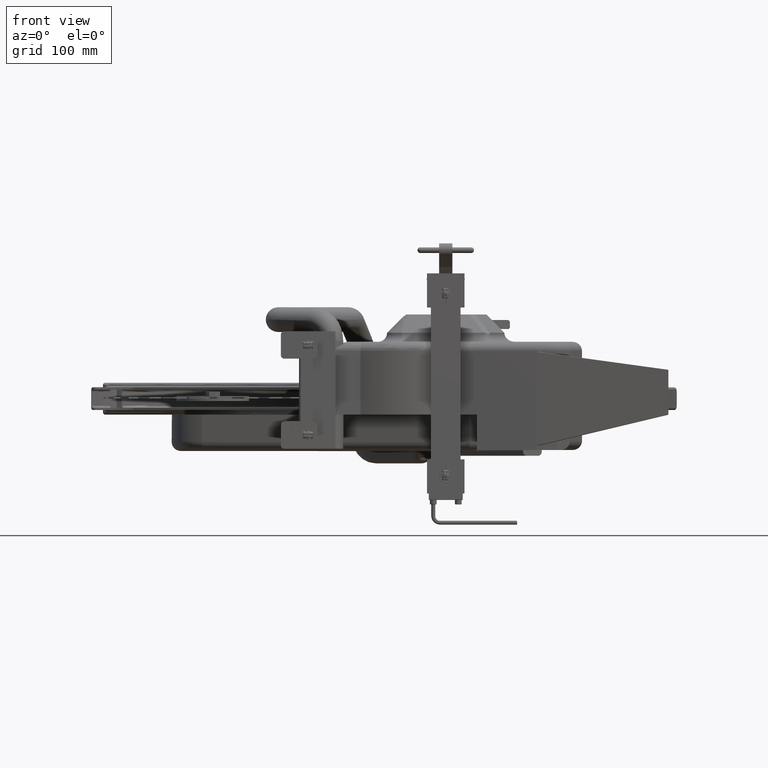
[diagram: clean part render]
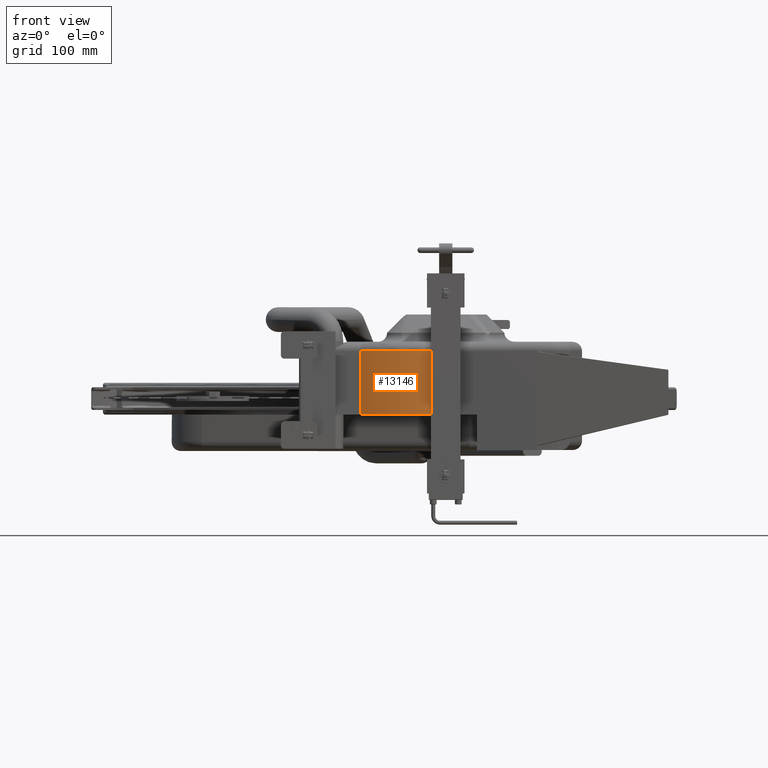
[diagram: same view with one face highlighted and labeled with its STEP entity id]
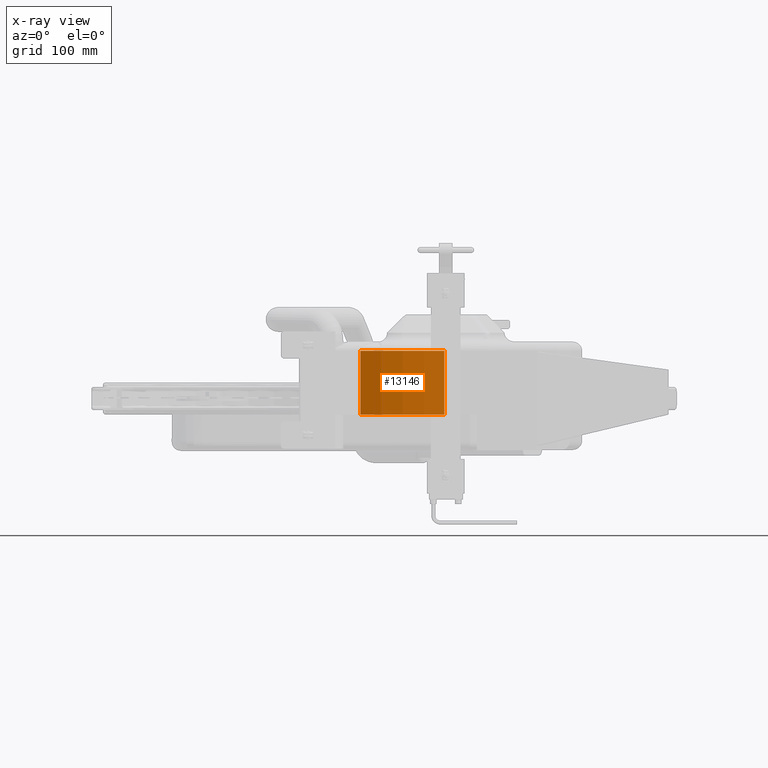
[diagram: x-ray of the same camera — body ghosted, the highlighted face saturated]
A machine part, front view. The second image highlights one B-rep face of the part: STEP entity #13146.
The next image is the same camera in x-ray: the body ghosted, the highlighted face saturated — about 0% of this face is hidden behind the body in this view.
In plain terms, the highlighted cylindrical surface (partial cylindrical patch) has radius 125.406 mm, axis along (-0, -0, -1).
Its self-contained STEP definition (entity closure, byte-faithful):
#2234 = LINE ( 'NONE', #9226, #88704 ) ;
#4027 = CARTESIAN_POINT ( 'NONE',  ( 8.132193572421522600, -7.928613643294152500, 2.625000000000000000 ) ) ;
#4554 = CARTESIAN_POINT ( 'NONE',  ( 8.132193572421522600, -7.928613643294152500, -0.8750000000000001100 ) ) ;
#5546 = CARTESIAN_POINT ( 'NONE',  ( 10.40450635986312600, -3.545338455313044300, 2.625000000000000000 ) ) ;
#5741 = FACE_OUTER_BOUND ( 'NONE', #16523, .T. ) ;
#5979 = VERTEX_POINT ( 'NONE', #4554 ) ;
#6635 = CARTESIAN_POINT ( 'NONE',  ( 12.73760973021988000, -7.896560748045500200, 2.625000000000000000 ) ) ;
#9226 = CARTESIAN_POINT ( 'NONE',  ( 8.132193572421522600, -7.928613643294152500, 3.125000000000000900 ) ) ;
#9825 = CIRCLE ( 'NONE', #35252, 4.937257009468105200 ) ;
#10610 = ORIENTED_EDGE ( 'NONE', *, *, #24944, .F. ) ;
#12589 = DIRECTION ( 'NONE',  ( -1.000000000000000000, 0.0000000000000000000, 0.0000000000000000000 ) ) ;
#13146 = ADVANCED_FACE ( 'NONE', ( #5741 ), #73629, .T. ) ;
#13997 = CARTESIAN_POINT ( 'NONE',  ( 12.73760973021988000, -7.896560748045500200, 3.125000000000000900 ) ) ;
#15213 = LINE ( 'NONE', #13997, #68824 ) ;
#15358 = EDGE_CURVE ( 'NONE', #89317, #22789, #9825, .T. ) ;
#16523 = EDGE_LOOP ( 'NONE', ( #10610, #74695, #81824, #89187 ) ) ;
#22789 = VERTEX_POINT ( 'NONE', #4027 ) ;
#24388 = DIRECTION ( 'NONE',  ( 0.0000000000000000000, 0.0000000000000000000, 1.000000000000000000 ) ) ;
#24944 = EDGE_CURVE ( 'NONE', #89317, #41454, #15213, .T. ) ;
#25218 = DIRECTION ( 'NONE',  ( -0.0000000000000000000, -0.0000000000000000000, -1.000000000000000000 ) ) ;
#31978 = DIRECTION ( 'NONE',  ( -1.000000000000000000, 0.0000000000000000000, 0.0000000000000000000 ) ) ;
#33404 = AXIS2_PLACEMENT_3D ( 'NONE', #74198, #25218, #31978 ) ;
#35252 = AXIS2_PLACEMENT_3D ( 'NONE', #5546, #54459, #12589 ) ;
#41454 = VERTEX_POINT ( 'NONE', #51929 ) ;
#44066 = DIRECTION ( 'NONE',  ( -0.0000000000000000000, -0.0000000000000000000, -1.000000000000000000 ) ) ;
#51929 = CARTESIAN_POINT ( 'NONE',  ( 12.73760973021988000, -7.896560748045500200, -0.8750000000000001100 ) ) ;
#53157 = EDGE_CURVE ( 'NONE', #22789, #5979, #2234, .T. ) ;
#54459 = DIRECTION ( 'NONE',  ( -0.0000000000000000000, -0.0000000000000000000, -1.000000000000000000 ) ) ;
#62910 = DIRECTION ( 'NONE',  ( -0.0000000000000000000, -0.0000000000000000000, -1.000000000000000000 ) ) ;
#66276 = CARTESIAN_POINT ( 'NONE',  ( 10.40450635986312600, -3.545338455313044300, -0.8750000000000001100 ) ) ;
#68824 = VECTOR ( 'NONE', #62910, 39.37007874015748100 ) ;
#69058 = EDGE_CURVE ( 'NONE', #5979, #41454, #82242, .T. ) ;
#73398 = DIRECTION ( 'NONE',  ( -1.000000000000000000, 0.0000000000000000000, 0.0000000000000000000 ) ) ;
#73629 = CYLINDRICAL_SURFACE ( 'NONE', #33404, 4.937257009468105200 ) ;
#74198 = CARTESIAN_POINT ( 'NONE',  ( 10.40450635986312600, -3.545338455313044300, 3.125000000000000900 ) ) ;
#74695 = ORIENTED_EDGE ( 'NONE', *, *, #15358, .T. ) ;
#80348 = AXIS2_PLACEMENT_3D ( 'NONE', #66276, #24388, #73398 ) ;
#81824 = ORIENTED_EDGE ( 'NONE', *, *, #53157, .T. ) ;
#82242 = CIRCLE ( 'NONE', #80348, 4.937257009468105200 ) ;
#88704 = VECTOR ( 'NONE', #44066, 39.37007874015748100 ) ;
#89187 = ORIENTED_EDGE ( 'NONE', *, *, #69058, .T. ) ;
#89317 = VERTEX_POINT ( 'NONE', #6635 ) ;